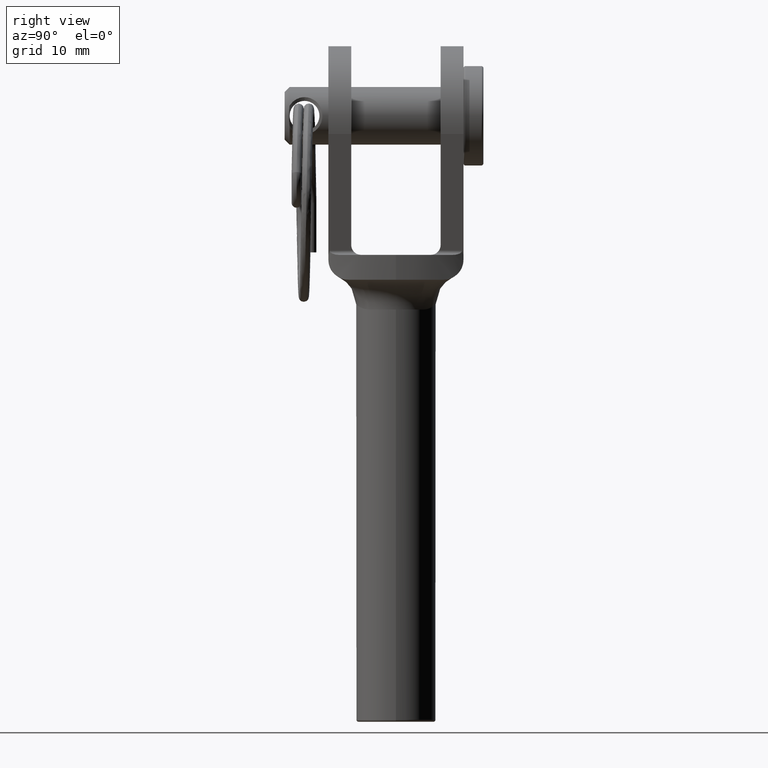
[diagram: clean part render]
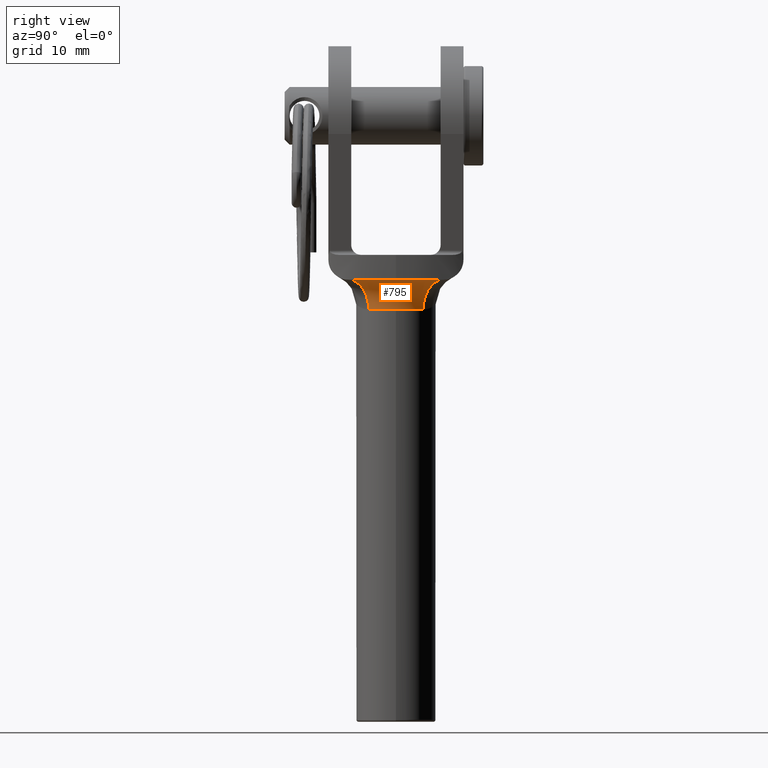
[diagram: same view with one face highlighted and labeled with its STEP entity id]
A machine part, right view. The second image highlights one B-rep face of the part: STEP entity #795.
In plain terms, the highlighted toroidal blend (fillet) surface has major radius 7 mm and minor (blend) radius 3 mm.
Its self-contained STEP definition (entity closure, byte-faithful):
#695 = CARTESIAN_POINT ( 'NONE',  ( 3.673940397442057400E-016, 0.0000000000000000000, -2.500000000000000000 ) ) ;
#795 = ADVANCED_FACE ( 'NONE', ( #14736 ), #3804, .F. ) ;
#815 = DIRECTION ( 'NONE',  ( -1.000000000000000000, 1.776356839400250500E-015, 1.239088197126290800E-016 ) ) ;
#1130 = VERTEX_POINT ( 'NONE', #17214 ) ;
#1581 = CIRCLE ( 'NONE', #14255, 3.000000000000000400 ) ;
#1819 = ORIENTED_EDGE ( 'NONE', *, *, #14040, .F. ) ;
#1944 = CARTESIAN_POINT ( 'NONE',  ( 0.0000000000000000000, 0.0000000000000000000, -5.499999999999998200 ) ) ;
#2304 = DIRECTION ( 'NONE',  ( -1.224646799147353200E-016, 0.0000000000000000000, -1.000000000000000000 ) ) ;
#3004 = AXIS2_PLACEMENT_3D ( 'NONE', #695, #3865, #18762 ) ;
#3220 = EDGE_LOOP ( 'NONE', ( #14226, #11313, #1819, #4599, #12409, #19485 ) ) ;
#3491 = CIRCLE ( 'NONE', #15509, 3.000000000000000400 ) ;
#3635 = VERTEX_POINT ( 'NONE', #9246 ) ;
#3781 = DIRECTION ( 'NONE',  ( -0.7278708115918284300, 0.6857142857142858300, 0.0000000000000000000 ) ) ;
#3804 = TOROIDAL_SURFACE ( 'NONE', #16843, 7.000000000000000000, 3.000000000000000000 ) ;
#3815 = CARTESIAN_POINT ( 'NONE',  ( 5.095095681142799600, 4.800000000000000700, -5.500000000000000900 ) ) ;
#3865 = DIRECTION ( 'NONE',  ( 1.224646799147353200E-016, -0.0000000000000000000, 1.000000000000000000 ) ) ;
#4599 = ORIENTED_EDGE ( 'NONE', *, *, #12668, .F. ) ;
#4971 = CARTESIAN_POINT ( 'NONE',  ( 5.095095681142799600, -4.799999999999999800, -2.500000000000000400 ) ) ;
#5834 = EDGE_CURVE ( 'NONE', #16734, #15823, #17239, .T. ) ;
#6485 = DIRECTION ( 'NONE',  ( 0.6857142857142858300, 0.7278708115918284300, -2.104424307244395500E-016 ) ) ;
#6789 = DIRECTION ( 'NONE',  ( -0.6857142857142858300, 0.7278708115918284300, 2.104424307244393700E-016 ) ) ;
#9246 = CARTESIAN_POINT ( 'NONE',  ( 2.911483246367314100, -2.742857142857142900, -5.499999999999998200 ) ) ;
#10435 = DIRECTION ( 'NONE',  ( -1.224646799147353200E-016, 0.0000000000000000000, -1.000000000000000000 ) ) ;
#10696 = CARTESIAN_POINT ( 'NONE',  ( 5.095095681142799600, 4.799999999999999800, -2.500000000000000400 ) ) ;
#10712 = CIRCLE ( 'NONE', #17929, 4.000000000000000000 ) ;
#11054 = CARTESIAN_POINT ( 'NONE',  ( 5.095095681142799600, -4.800000000000000700, -5.499999999999998200 ) ) ;
#11121 = CARTESIAN_POINT ( 'NONE',  ( 4.000000000000000000, 0.0000000000000000000, -5.499999999999999100 ) ) ;
#11291 = DIRECTION ( 'NONE',  ( -1.000000000000000000, 0.0000000000000000000, 2.168404344971008900E-016 ) ) ;
#11313 = ORIENTED_EDGE ( 'NONE', *, *, #12117, .F. ) ;
#11315 = EDGE_CURVE ( 'NONE', #1130, #14081, #13080, .T. ) ;
#12106 = CARTESIAN_POINT ( 'NONE',  ( 0.0000000000000000000, 0.0000000000000000000, -5.499999999999998200 ) ) ;
#12117 = EDGE_CURVE ( 'NONE', #13709, #16734, #13310, .T. ) ;
#12409 = ORIENTED_EDGE ( 'NONE', *, *, #11315, .F. ) ;
#12668 = EDGE_CURVE ( 'NONE', #14081, #3635, #10712, .T. ) ;
#13080 = CIRCLE ( 'NONE', #16001, 4.000000000000000000 ) ;
#13310 = CIRCLE ( 'NONE', #16904, 7.000000000000000000 ) ;
#13709 = VERTEX_POINT ( 'NONE', #4971 ) ;
#14040 = EDGE_CURVE ( 'NONE', #3635, #13709, #1581, .T. ) ;
#14081 = VERTEX_POINT ( 'NONE', #11121 ) ;
#14226 = ORIENTED_EDGE ( 'NONE', *, *, #5834, .F. ) ;
#14255 = AXIS2_PLACEMENT_3D ( 'NONE', #11054, #6485, #3781 ) ;
#14736 = FACE_OUTER_BOUND ( 'NONE', #3220, .T. ) ;
#15277 = EDGE_CURVE ( 'NONE', #1130, #15823, #3491, .T. ) ;
#15509 = AXIS2_PLACEMENT_3D ( 'NONE', #3815, #6789, #19125 ) ;
#15820 = CARTESIAN_POINT ( 'NONE',  ( 0.0000000000000000000, 0.0000000000000000000, -5.499999999999998200 ) ) ;
#15823 = VERTEX_POINT ( 'NONE', #10696 ) ;
#16001 = AXIS2_PLACEMENT_3D ( 'NONE', #12106, #10435, #16365 ) ;
#16051 = CARTESIAN_POINT ( 'NONE',  ( 3.673940397442057400E-016, 0.0000000000000000000, -2.500000000000000000 ) ) ;
#16365 = DIRECTION ( 'NONE',  ( -1.000000000000000000, 0.0000000000000000000, 2.168404344971008900E-016 ) ) ;
#16734 = VERTEX_POINT ( 'NONE', #16974 ) ;
#16843 = AXIS2_PLACEMENT_3D ( 'NONE', #1944, #18550, #17107 ) ;
#16904 = AXIS2_PLACEMENT_3D ( 'NONE', #16051, #19233, #815 ) ;
#16974 = CARTESIAN_POINT ( 'NONE',  ( 7.000000000000000900, 0.0000000000000000000, -2.500000000000000900 ) ) ;
#17107 = DIRECTION ( 'NONE',  ( -1.000000000000000000, 0.0000000000000000000, 1.224646799147353200E-016 ) ) ;
#17214 = CARTESIAN_POINT ( 'NONE',  ( 2.911483246367314100, 2.742857142857142900, -5.499999999999998200 ) ) ;
#17239 = CIRCLE ( 'NONE', #3004, 7.000000000000000000 ) ;
#17929 = AXIS2_PLACEMENT_3D ( 'NONE', #15820, #2304, #11291 ) ;
#18550 = DIRECTION ( 'NONE',  ( -1.224646799147353200E-016, 0.0000000000000000000, -1.000000000000000000 ) ) ;
#18762 = DIRECTION ( 'NONE',  ( -1.000000000000000000, 0.0000000000000000000, 1.239088197126290800E-016 ) ) ;
#19125 = DIRECTION ( 'NONE',  ( -0.7278708115918284300, -0.6857142857142858300, 0.0000000000000000000 ) ) ;
#19233 = DIRECTION ( 'NONE',  ( 1.224646799147353200E-016, -0.0000000000000000000, 1.000000000000000000 ) ) ;
#19485 = ORIENTED_EDGE ( 'NONE', *, *, #15277, .T. ) ;